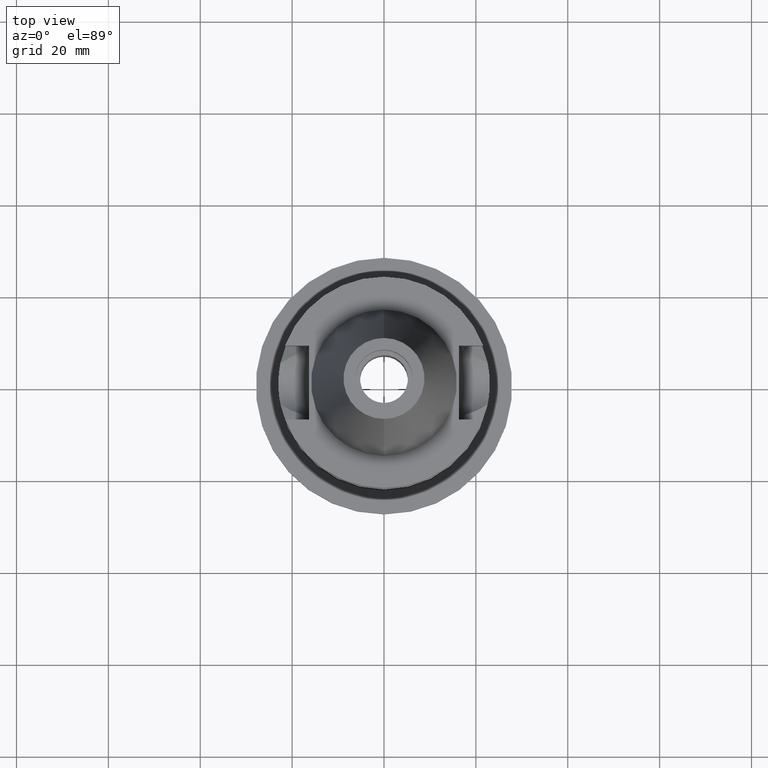
[diagram: clean part render]
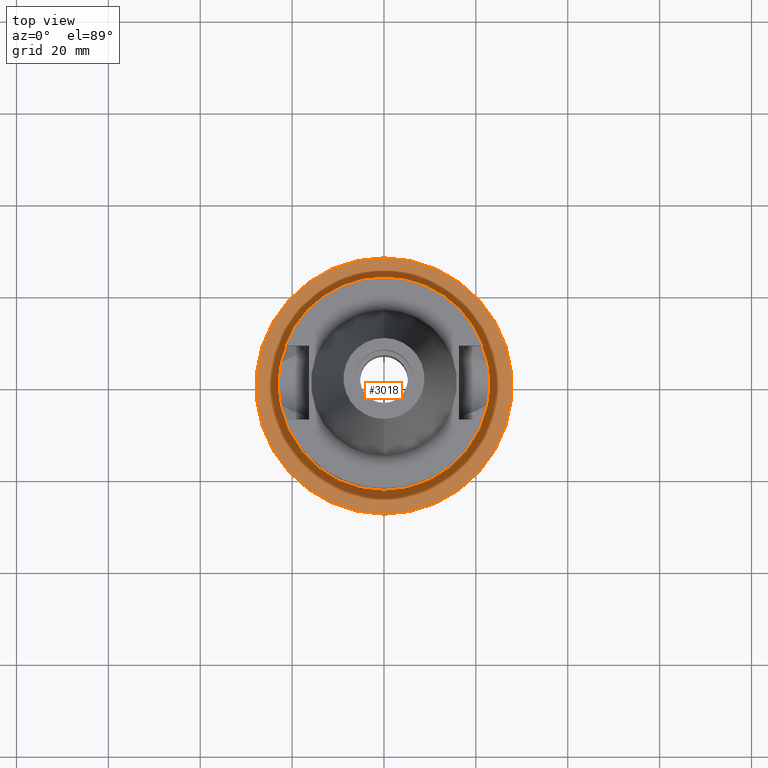
[diagram: same view with one face highlighted and labeled with its STEP entity id]
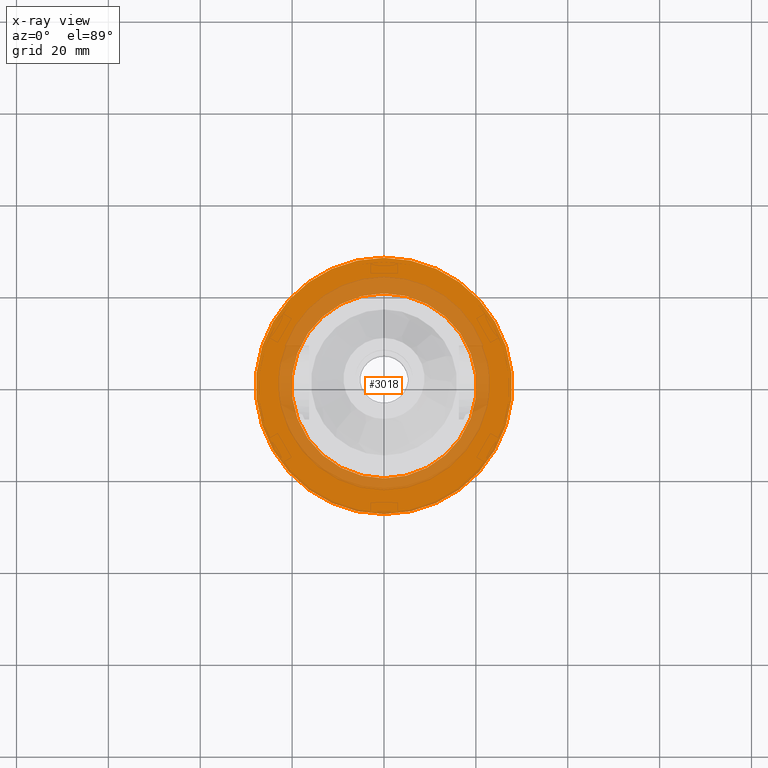
[diagram: x-ray of the same camera — body ghosted, the highlighted face saturated]
A machine part, top view. The second image highlights one B-rep face of the part: STEP entity #3018.
The next image is the same camera in x-ray: the body ghosted, the highlighted face saturated — about 35% of this face is hidden behind the body in this view.
In plain terms, the highlighted planar face has unit normal (0, 0, -1).
Its self-contained STEP definition (entity closure, byte-faithful):
#710=CARTESIAN_POINT('',(0.E0,1.902121408436E-14,-4.54E1));
#711=DIRECTION('',(0.E0,0.E0,-1.E0));
#712=DIRECTION('',(0.E0,-1.E0,0.E0));
#713=AXIS2_PLACEMENT_3D('',#710,#711,#712);
#718=CARTESIAN_POINT('',(0.E0,1.902121408436E-14,-4.54E1));
#719=DIRECTION('',(0.E0,0.E0,-1.E0));
#720=DIRECTION('',(0.E0,1.E0,0.E0));
#721=AXIS2_PLACEMENT_3D('',#718,#719,#720);
#726=CARTESIAN_POINT('',(0.E0,1.902121408436E-14,-4.54E1));
#727=DIRECTION('',(0.E0,0.E0,1.E0));
#728=DIRECTION('',(0.E0,-1.E0,0.E0));
#729=AXIS2_PLACEMENT_3D('',#726,#727,#728);
#734=CARTESIAN_POINT('',(0.E0,1.902121408436E-14,-4.54E1));
#735=DIRECTION('',(0.E0,0.E0,1.E0));
#736=DIRECTION('',(0.E0,1.E0,0.E0));
#737=AXIS2_PLACEMENT_3D('',#734,#735,#736);
#2360=CARTESIAN_POINT('',(0.E0,2.79E1,-4.54E1));
#2361=VERTEX_POINT('',#2360);
#2362=CARTESIAN_POINT('',(0.E0,-2.79E1,-4.54E1));
#2363=VERTEX_POINT('',#2362);
#2364=CARTESIAN_POINT('',(0.E0,-2.015E1,-4.54E1));
#2365=CARTESIAN_POINT('',(0.E0,2.015E1,-4.54E1));
#2366=VERTEX_POINT('',#2364);
#2367=VERTEX_POINT('',#2365);
#3003=CARTESIAN_POINT('',(0.E0,0.E0,-4.54E1));
#3004=DIRECTION('',(0.E0,0.E0,-1.E0));
#3005=DIRECTION('',(0.E0,-1.E0,0.E0));
#3006=AXIS2_PLACEMENT_3D('',#3003,#3004,#3005);
#3007=PLANE('',#3006);
#3009=ORIENTED_EDGE('',*,*,#3008,.T.);
#3011=ORIENTED_EDGE('',*,*,#3010,.T.);
#3012=EDGE_LOOP('',(#3009,#3011));
#3013=FACE_OUTER_BOUND('',#3012,.F.);
#3014=ORIENTED_EDGE('',*,*,#2996,.T.);
#3015=ORIENTED_EDGE('',*,*,#2985,.T.);
#3016=EDGE_LOOP('',(#3014,#3015));
#3017=FACE_BOUND('',#3016,.F.);
#714=CIRCLE('',#713,2.79E1);
#722=CIRCLE('',#721,2.79E1);
#730=CIRCLE('',#729,2.015E1);
#738=CIRCLE('',#737,2.015E1);
#2985=EDGE_CURVE('',#2367,#2366,#738,.T.);
#2996=EDGE_CURVE('',#2366,#2367,#730,.T.);
#3008=EDGE_CURVE('',#2363,#2361,#714,.T.);
#3010=EDGE_CURVE('',#2361,#2363,#722,.T.);
#3018=ADVANCED_FACE('',(#3013,#3017),#3007,.F.);